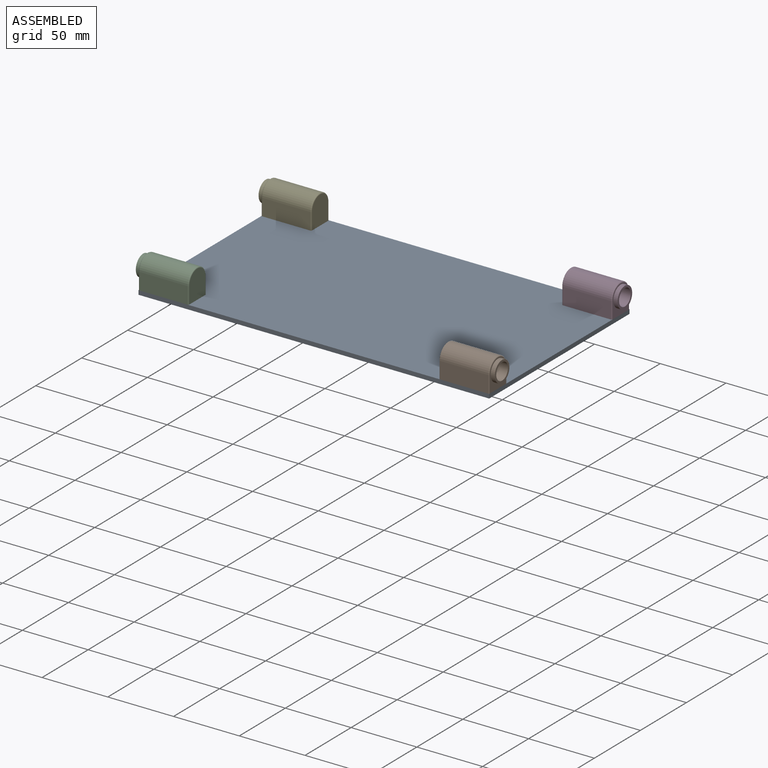
[diagram: assembled view]
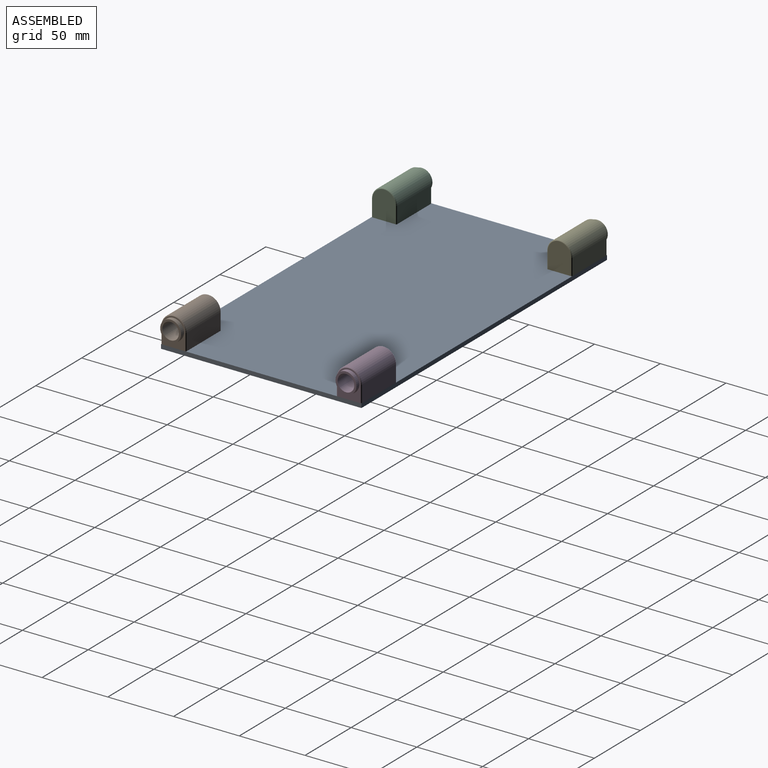
[diagram: assembled view, second angle]
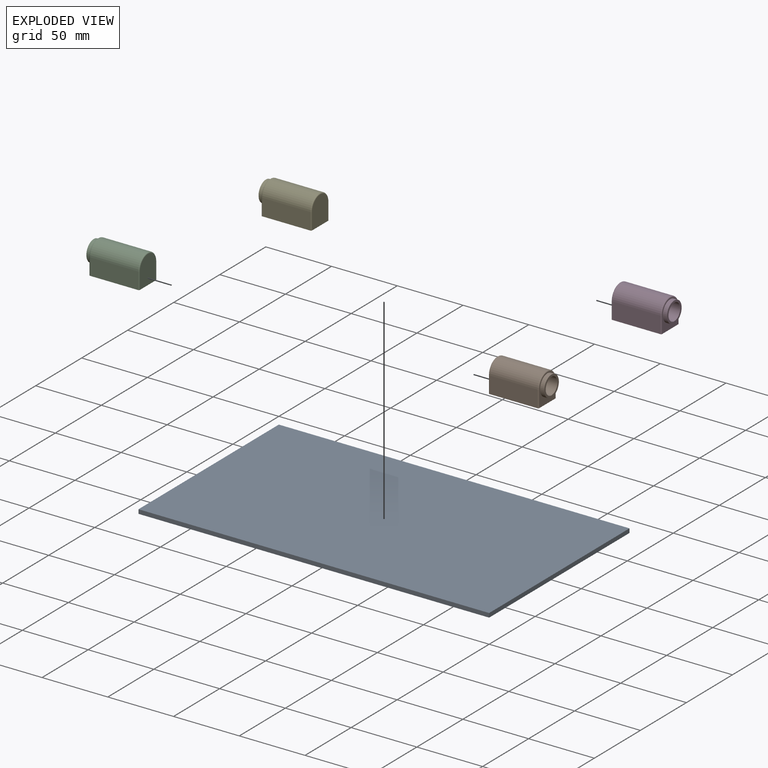
[diagram: exploded view]
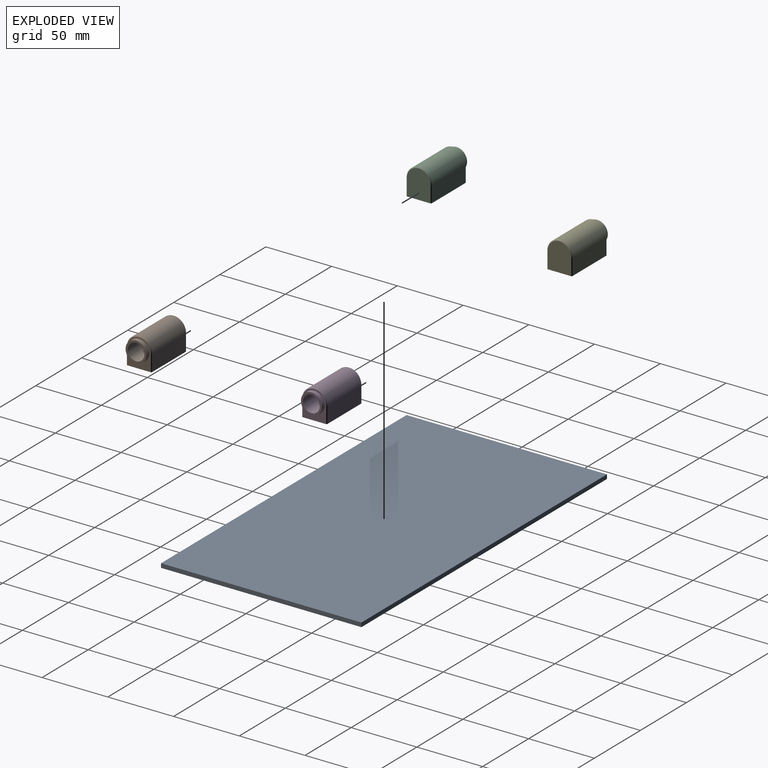
[diagram: exploded view, second angle]
ASSEMBLY  parts=5 mates=12
PART A: 6 faces, bbox 266.7x152.4x3.2 mm
  f0: plane 266.7x3.18mm, normal (0,1,0), area 846.8mm2, adj f1,f3,f4,f5
  f1: plane 152.4x3.18mm, normal (-1,0,0), area 483.9mm2, adj f0,f2,f4,f5
  f2: plane 266.7x3.18mm, normal (0,-1,0), area 846.8mm2, adj f1,f3,f4,f5
  f3: plane 152.4x3.18mm, normal (1,0,0), area 483.9mm2, adj f0,f2,f4,f5
  f4: plane 266.7x152.4mm, normal (0,0,1), area 40645.1mm2, adj f0,f1,f2,f3
  f5: plane 266.7x152.4mm, normal (0,0,-1), area 40645.1mm2, adj f0,f1,f2,f3
PART B: 45 faces, bbox 20.6x23.3x41.3 mm
  f0: cylinder r=3mm len=5.02mm, axis (0,-1,0), area 0.6mm2, adj f1,f2,f44
  f1: bspline ~4.88x1.96mm, area 0mm2, adj f0,f44
  f2: bspline ~6.02x6.02mm, area 60.8mm2, adj f0,f3,f7,f43,f44
  f3: cylinder r=2.48mm len=4.97mm, axis (0,-1,0), area 10.9mm2, adj f2,f4,f43,f44
  f4: bspline ~6x6mm, area 60.3mm2, adj f3,f5,f7,f43,f44
  f5: cylinder r=2.48mm len=3.73mm, axis (0,-1,0), area 0.4mm2, adj f4,f6,f44
  f6: bspline ~3.55x1.24mm, area 0mm2, adj f5,f44
  f7: cylinder r=3mm len=6mm, axis (0,-1,0), area 11.7mm2, adj f2,f4,f8,f44
  f8: plane 38.1x19.05mm, normal (0,-1,0), area 410.3mm2, adj f7,f9,f13,f18,f19,f20,f21,f22
  f9: cylinder r=0.76mm len=12.7mm, axis (0,-1,0), area 15.2mm2, adj f8,f10,f13,f23
  f10: torus R=8.76mm, axis (0,0,-1), area 34.8mm2, adj f9,f11,f13,f18
  f11: cylinder r=9.53mm len=36.58mm, axis (0,0,-1), area 1094.5mm2, adj f10,f12,f19,f23
  f12: torus R=8.76mm, axis (0,0,1), area 34.8mm2, adj f11,f20,f21,f22
  f13: plane 21.46x17.53mm, normal (0,0,-1), area 145.3mm2, adj f8,f9,f10,f14,f18
  f14: cylinder r=7.94mm len=15.88mm, axis (0,0,-1), area 158.3mm2, adj f13,f15
  f15: plane 15.88x15.88mm, normal (0,0,-1), area 71.3mm2, adj f14,f16
  f16: cylinder r=6.35mm len=36.51mm, axis (0,0,1), area 1456.8mm2, adj f15,f17
  f17: plane 12.7x12.7mm, normal (0,0,-1), area 126.7mm2, adj f16
  f18: cylinder r=0.76mm len=12.7mm, axis (0,-1,0), area 15.2mm2, adj f8,f10,f13,f19
  f19: plane 36.58x12.7mm, normal (-1,0,0), area 464.5mm2, adj f8,f11,f18,f20
  f20: cylinder r=0.76mm len=12.7mm, axis (0,-1,0), area 15.2mm2, adj f8,f12,f19,f21
  f21: plane 21.46x17.53mm, normal (0,0,1), area 343.2mm2, adj f8,f12,f20,f22
  f22: cylinder r=0.76mm len=12.7mm, axis (0,-1,0), area 15.2mm2, adj f8,f12,f21,f23
  f23: plane 36.58x12.7mm, normal (1,0,0), area 464.5mm2, adj f8,f9,f11,f22
  f24: cylinder r=5.54mm len=11.08mm, axis (0,-1,0), area 122.1mm2, adj f8,f25,f26,f32
  f25: cylinder r=7.94mm len=25.4mm, axis (0,0,-1), area 330mm2, adj f24,f26,f27,f28,f29,f30,f31,f32
  f26: plane 8.93x1.45mm, normal (0,0,1), area 11.4mm2, adj f8,f24,f25,f27
  f27: plane 25.4x8.93mm, normal (-1,0,0), area 226.8mm2, adj f8,f25,f26,f28
  f28: plane 8.93x1.45mm, normal (0,0,-1), area 11.4mm2, adj f8,f25,f27,f29
  f29: cylinder r=5.54mm len=11.08mm, axis (0,-1,0), area 122.1mm2, adj f8,f25,f28,f30
  f30: plane 8.93x1.45mm, normal (0,0,-1), area 11.4mm2, adj f8,f25,f29,f31
  f31: plane 25.4x8.93mm, normal (1,0,0), area 226.8mm2, adj f8,f25,f30,f32
  f32: plane 8.93x1.45mm, normal (0,0,1), area 11.4mm2, adj f8,f24,f25,f31
  f33: cylinder r=3mm len=6mm, axis (0,-1,0), area 11.7mm2, adj f8,f34,f38,f41
  f34: bspline ~6x6mm, area 60.3mm2, adj f33,f35,f37,f38,f42
  f35: cylinder r=2.48mm len=3.73mm, axis (0,-1,0), area 0.4mm2, adj f34,f36,f38
  f36: bspline ~3.55x1.24mm, area 0mm2, adj f35,f38
  f37: cylinder r=2.48mm len=4.97mm, axis (0,-1,0), area 10.9mm2, adj f34,f38,f41,f42
  f38: cylinder r=7.94mm len=5.69mm, axis (0,0,-1), area 23.8mm2, adj f33,f34,f35,f36,f37,f39,f40,f41
  f39: bspline ~4.88x1.96mm, area 0mm2, adj f38,f40
  f40: cylinder r=3mm len=5.02mm, axis (0,-1,0), area 0.6mm2, adj f38,f39,f41
  f41: bspline ~6.02x6.02mm, area 60.8mm2, adj f33,f37,f38,f40,f42
  f42: cone r=3mm half-angle=45deg, axis (0,-1,0), area 6.4mm2, adj f8,f34,f37,f41
  f43: cone r=3mm half-angle=45deg, axis (0,-1,0), area 6.4mm2, adj f2,f3,f4,f8
  f44: cylinder r=7.94mm len=5.69mm, axis (0,0,-1), area 23.8mm2, adj f0,f1,f2,f3,f4,f5,f6,f7
PART C: same geometry as B
PART D: same geometry as B
PART E: same geometry as B
PLACE A t=(0,0,-3.18)mm fixed
PLACE B rot(axis=(0.58,-0.58,-0.58),120deg) t=(136.52,-66.68,12.7)mm
PLACE C rot(axis=(0.58,0.58,0.58),120deg) t=(-136.53,-66.67,12.7)mm
PLACE D rot(axis=(0.58,-0.58,-0.58),120deg) t=(136.53,66.67,12.7)mm
PLACE E rot(axis=(0.58,0.58,0.58),120deg) t=(-136.53,66.68,12.7)mm
MATE planar C.f13 <-> A.f1  axis (-1,0,0) through (-133.35,-66.67,6.06)mm
MATE planar B.f8 <-> A.f4  axis (0,0,-1) through (101.6,-73.66,0)mm
MATE planar B.f23 <-> A.f2  axis (0,-1,0) through (114.3,-76.2,6.35)mm
MATE planar C.f19 <-> A.f2  axis (0,-1,0) through (-114.3,-76.2,6.35)mm
MATE planar D.f13 <-> A.f3  axis (1,0,0) through (133.35,75.44,0)mm
MATE planar E.f13 <-> A.f1  axis (-1,0,0) through (-133.35,66.68,6.06)mm
MATE planar B.f13 <-> A.f3  axis (1,0,0) through (133.35,-66.68,0)mm
MATE planar D.f8 <-> A.f4  axis (0,0,-1) through (129.12,64.55,0)mm
MATE planar C.f8 <-> A.f4  axis (0,0,-1) through (-133.35,-66.67,0)mm
MATE planar D.f19 <-> A.f0  axis (0,1,0) through (96.01,76.2,6.35)mm
MATE planar E.f23 <-> A.f0  axis (0,1,0) through (-114.3,76.2,6.35)mm
MATE planar E.f8 <-> A.f4  axis (0,0,-1) through (-95.25,66.68,0)mm
